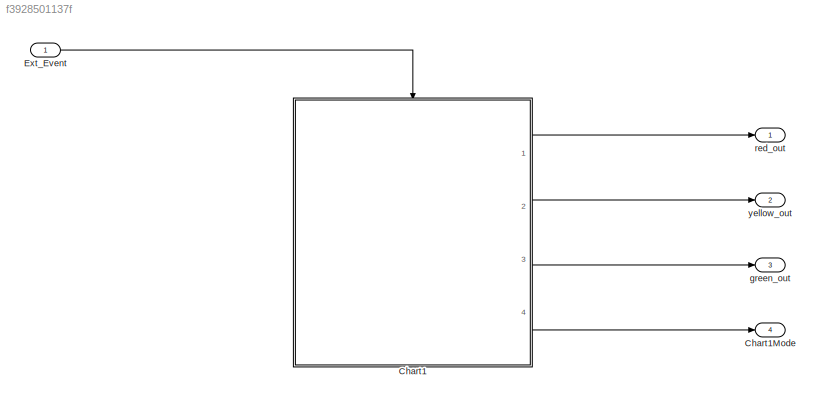
MODEL slx_f3928501137f
KIND model
CONFIG AbsTol = auto
CONFIG FixedStep = auto
CONFIG MaxStep = auto
CONFIG MinStep = auto
CONFIG RelTol = 1e-3
CONFIG SampleTimeConstraint = Unconstrained
CONFIG Solver = FixedStepDiscrete
CONFIG SolverMode = SingleTasking
CONFIG SolverName = FixedStepDiscrete
CONFIG StartTime = 0.0
CONFIG StopTime = 10.0
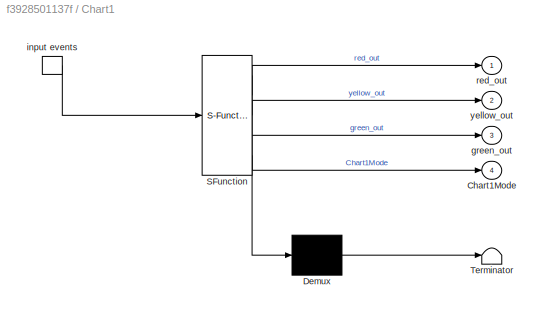
BLOCK [SubSystem] Chart1
  ErrorFcn = Stateflow.Translate.translate
  PermitHierarchicalResolution = ExplicitOnly
  Ports = [0, 4, 0, 1]
  RequestExecContextInheritance = off
  SFBlockType = Chart
  TreatAsAtomicUnit = on
BLOCK [Demux] Chart1/ Demux 
  Outputs = 1
  Ports = [1, 1]
BLOCK [S-Function] Chart1/ SFunction 
  EnableBusSupport = on
  FunctionName = sf_sfun
  PortCounts = [1 5]
  Ports = [1, 5]
  Tag = Stateflow S-Function trafficlight 3
BLOCK [Terminator] Chart1/ Terminator 
BLOCK [TriggerPort] Chart1/ input events 
  Ports = [0, 1]
  ShowOutputPort = on
  StatesWhenEnabling = held
  TriggerType = either
BLOCK [Outport] Chart1/Chart1Mode
  IconDisplay = Port number
  Port = 4
BLOCK [Outport] Chart1/green_out
  IconDisplay = Port number
  Port = 3
BLOCK [Outport] Chart1/red_out
  IconDisplay = Port number
BLOCK [Outport] Chart1/yellow_out
  IconDisplay = Port number
  Port = 2
BLOCK [Outport] Chart1Mode
  IconDisplay = Port number
  Port = 4
BLOCK [Inport] Ext_Event
  IconDisplay = Port number
BLOCK [Outport] green_out
  IconDisplay = Port number
  Port = 3
BLOCK [Outport] red_out
  IconDisplay = Port number
BLOCK [Outport] yellow_out
  IconDisplay = Port number
  Port = 2
LINE Chart1:1 -> red_out:1
LINE Chart1:2 -> yellow_out:1
LINE Chart1:3 -> green_out:1
LINE Chart1:4 -> Chart1Mode:1
LINE Ext_Event:1 -> Chart1:trigger
CHART Chart1 states=3 transitions=4
  STATE_LABEL 'R\nentry: red_out = 1;\nduring: red_out = 1;\nexit: red_out = 0;'
  STATE_LABEL 'Y\nentry: yellow_out = 1;\nexit: yellow_out = 0;'
  STATE_LABEL 'G\nentry: green_out = 1;\nexit: green_out = 0;'
